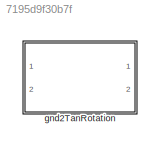
MODEL slx_7195d9f30b7f
KIND library
CONFIG AbsTol = auto
CONFIG EnableMultiTasking = off
CONFIG FixedStep = auto
CONFIG MaxStep = auto
CONFIG MinStep = auto
CONFIG RelTol = 1e-3
CONFIG SampleTimeConstraint = Unconstrained
CONFIG SolverName = VariableStepAuto
CONFIG StartTime = 0.0
CONFIG StopTime = 10.0
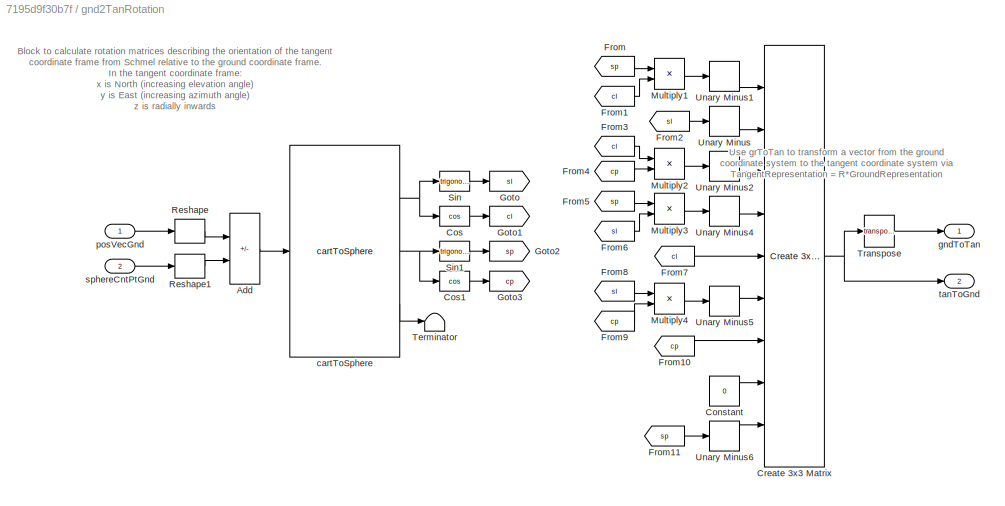
BLOCK [SubSystem] gnd2TanRotation
  Ports = [2, 2]
  RequestExecContextInheritance = off
BLOCK [Sum] gnd2TanRotation/Add
  IconShape = rectangular
  Inputs = +-
  Ports = [2, 1]
BLOCK [Constant] gnd2TanRotation/Constant
  Value = 0
BLOCK [Trigonometry] gnd2TanRotation/Cos
  Operator = cos
  Ports = [1, 1]
BLOCK [Trigonometry] gnd2TanRotation/Cos1
  Operator = cos
  Ports = [1, 1]
BLOCK [Reference] gnd2TanRotation/Create 3x3 Matrix  REF=sharedutil/Create 3x3 Matrix
  Ports = [9, 1]
  SourceBlock = sharedutil/Create 3x3 Matrix
  SourceProductBaseCode = AE,PW,DR,MT,VE
  SourceType = Create 3x3 Matrix
BLOCK [From] gnd2TanRotation/From
  GotoTag = sp
BLOCK [From] gnd2TanRotation/From1
  GotoTag = cl
BLOCK [From] gnd2TanRotation/From10
  GotoTag = cp
BLOCK [From] gnd2TanRotation/From11
  GotoTag = sp
BLOCK [From] gnd2TanRotation/From2
  GotoTag = sl
BLOCK [From] gnd2TanRotation/From3
  GotoTag = cl
BLOCK [From] gnd2TanRotation/From4
  GotoTag = cp
BLOCK [From] gnd2TanRotation/From5
  GotoTag = sp
BLOCK [From] gnd2TanRotation/From6
  GotoTag = sl
BLOCK [From] gnd2TanRotation/From7
  GotoTag = cl
BLOCK [From] gnd2TanRotation/From8
  GotoTag = sl
BLOCK [From] gnd2TanRotation/From9
  GotoTag = cp
BLOCK [Goto] gnd2TanRotation/Goto
  GotoTag = sl
BLOCK [Goto] gnd2TanRotation/Goto1
  GotoTag = cl
BLOCK [Goto] gnd2TanRotation/Goto2
  GotoTag = sp
BLOCK [Goto] gnd2TanRotation/Goto3
  GotoTag = cp
BLOCK [Product] gnd2TanRotation/Multiply1
  Ports = [2, 1]
BLOCK [Product] gnd2TanRotation/Multiply2
  Ports = [2, 1]
BLOCK [Product] gnd2TanRotation/Multiply3
  Ports = [2, 1]
BLOCK [Product] gnd2TanRotation/Multiply4
  Ports = [2, 1]
BLOCK [Reshape] gnd2TanRotation/Reshape
  Ports = [1, 1]
BLOCK [Reshape] gnd2TanRotation/Reshape1
  Ports = [1, 1]
BLOCK [Trigonometry] gnd2TanRotation/Sin
  Ports = [1, 1]
BLOCK [Trigonometry] gnd2TanRotation/Sin1
  Ports = [1, 1]
BLOCK [Terminator] gnd2TanRotation/Terminator
BLOCK [Math] gnd2TanRotation/Transpose
  Operator = transpose
  Ports = [1, 1]
  SignedPower = on
BLOCK [UnaryMinus] gnd2TanRotation/Unary Minus
BLOCK [UnaryMinus] gnd2TanRotation/Unary Minus1
BLOCK [UnaryMinus] gnd2TanRotation/Unary Minus2
BLOCK [UnaryMinus] gnd2TanRotation/Unary Minus4
BLOCK [UnaryMinus] gnd2TanRotation/Unary Minus5
BLOCK [UnaryMinus] gnd2TanRotation/Unary Minus6
BLOCK [Reference] gnd2TanRotation/cartToSphere  REF=cartToSphere_ul/cartToSphere
  Ports = [1, 3]
  SourceBlock = cartToSphere_ul/cartToSphere
  SourceType = SubSystem
BLOCK [Outport] gnd2TanRotation/gndToTan
  VectorParamsAs1DForOutWhenUnconnected = off
BLOCK [Inport] gnd2TanRotation/posVecGnd
BLOCK [Inport] gnd2TanRotation/sphereCntPtGnd
  Port = 2
BLOCK [Outport] gnd2TanRotation/tanToGnd
  Port = 2
  VectorParamsAs1DForOutWhenUnconnected = off
ANNOTATION gnd2TanRotation: Block to calculate rotation matrices describing the orientation of the tangent coordinate frame from Schmel relative to the ground coordinate frame. In the tangent coordinate frame: x is North (increasing elevation angle) y is East (increasing azimuth angle) z is radially inwards
ANNOTATION gnd2TanRotation: Use grToTan to transform a vector from the ground coordinate system to the tangent coordinate system via TangentRepresentation = R*GroundRepresentation
LINE gnd2TanRotation/Add:1 -> gnd2TanRotation/cartToSphere:1
LINE gnd2TanRotation/Constant:1 -> gnd2TanRotation/Create 3x3 Matrix:8
LINE gnd2TanRotation/Cos1:1 -> gnd2TanRotation/Goto3:1
LINE gnd2TanRotation/Cos:1 -> gnd2TanRotation/Goto1:1
NET gnd2TanRotation/Create 3x3 Matrix:1 -> gnd2TanRotation/Transpose:1, gnd2TanRotation/tanToGnd:1
LINE gnd2TanRotation/From10:1 -> gnd2TanRotation/Create 3x3 Matrix:7
LINE gnd2TanRotation/From11:1 -> gnd2TanRotation/Unary Minus6:1
LINE gnd2TanRotation/From1:1 -> gnd2TanRotation/Multiply1:2
LINE gnd2TanRotation/From2:1 -> gnd2TanRotation/Unary Minus:1
LINE gnd2TanRotation/From3:1 -> gnd2TanRotation/Multiply2:1
LINE gnd2TanRotation/From4:1 -> gnd2TanRotation/Multiply2:2
LINE gnd2TanRotation/From5:1 -> gnd2TanRotation/Multiply3:1
LINE gnd2TanRotation/From6:1 -> gnd2TanRotation/Multiply3:2
LINE gnd2TanRotation/From7:1 -> gnd2TanRotation/Create 3x3 Matrix:5
LINE gnd2TanRotation/From8:1 -> gnd2TanRotation/Multiply4:1
LINE gnd2TanRotation/From9:1 -> gnd2TanRotation/Multiply4:2
LINE gnd2TanRotation/From:1 -> gnd2TanRotation/Multiply1:1
LINE gnd2TanRotation/Multiply1:1 -> gnd2TanRotation/Unary Minus1:1
LINE gnd2TanRotation/Multiply2:1 -> gnd2TanRotation/Unary Minus2:1
LINE gnd2TanRotation/Multiply3:1 -> gnd2TanRotation/Unary Minus4:1
LINE gnd2TanRotation/Multiply4:1 -> gnd2TanRotation/Unary Minus5:1
LINE gnd2TanRotation/Reshape1:1 -> gnd2TanRotation/Add:2
LINE gnd2TanRotation/Reshape:1 -> gnd2TanRotation/Add:1
LINE gnd2TanRotation/Sin1:1 -> gnd2TanRotation/Goto2:1
LINE gnd2TanRotation/Sin:1 -> gnd2TanRotation/Goto:1
LINE gnd2TanRotation/Transpose:1 -> gnd2TanRotation/gndToTan:1
LINE gnd2TanRotation/Unary Minus1:1 -> gnd2TanRotation/Create 3x3 Matrix:1
LINE gnd2TanRotation/Unary Minus2:1 -> gnd2TanRotation/Create 3x3 Matrix:3
LINE gnd2TanRotation/Unary Minus4:1 -> gnd2TanRotation/Create 3x3 Matrix:4
LINE gnd2TanRotation/Unary Minus5:1 -> gnd2TanRotation/Create 3x3 Matrix:6
LINE gnd2TanRotation/Unary Minus6:1 -> gnd2TanRotation/Create 3x3 Matrix:9
LINE gnd2TanRotation/Unary Minus:1 -> gnd2TanRotation/Create 3x3 Matrix:2
NET gnd2TanRotation/cartToSphere:1 -> gnd2TanRotation/Cos:1, gnd2TanRotation/Sin:1
NET gnd2TanRotation/cartToSphere:2 -> gnd2TanRotation/Cos1:1, gnd2TanRotation/Sin1:1
LINE gnd2TanRotation/cartToSphere:3 -> gnd2TanRotation/Terminator:1
LINE gnd2TanRotation/posVecGnd:1 -> gnd2TanRotation/Reshape:1
LINE gnd2TanRotation/sphereCntPtGnd:1 -> gnd2TanRotation/Reshape1:1
note: NET lines group one-source signal fan-out (src -> all destinations, sorted); 1:1 wires keep LINE
